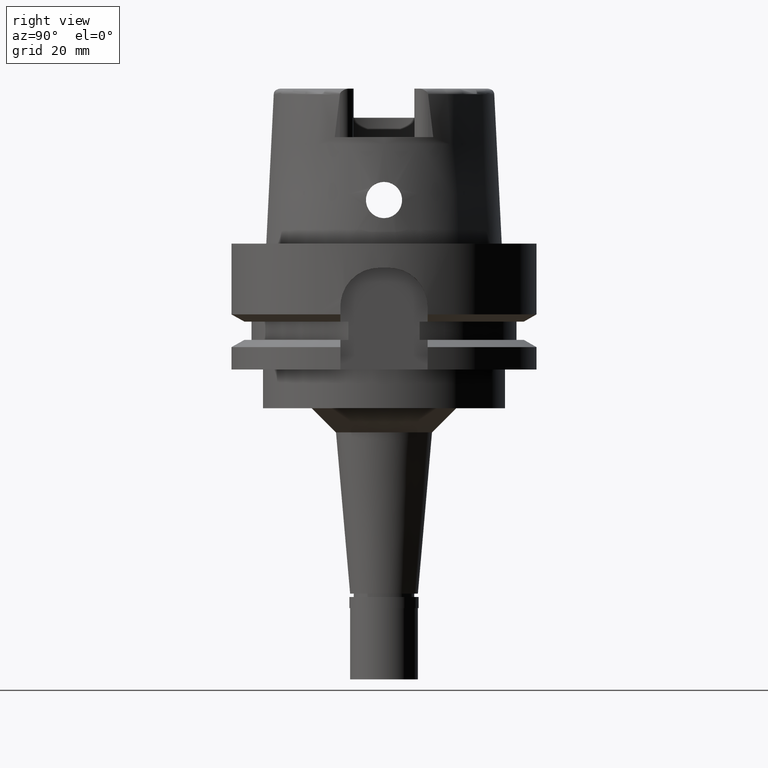
[diagram: clean part render]
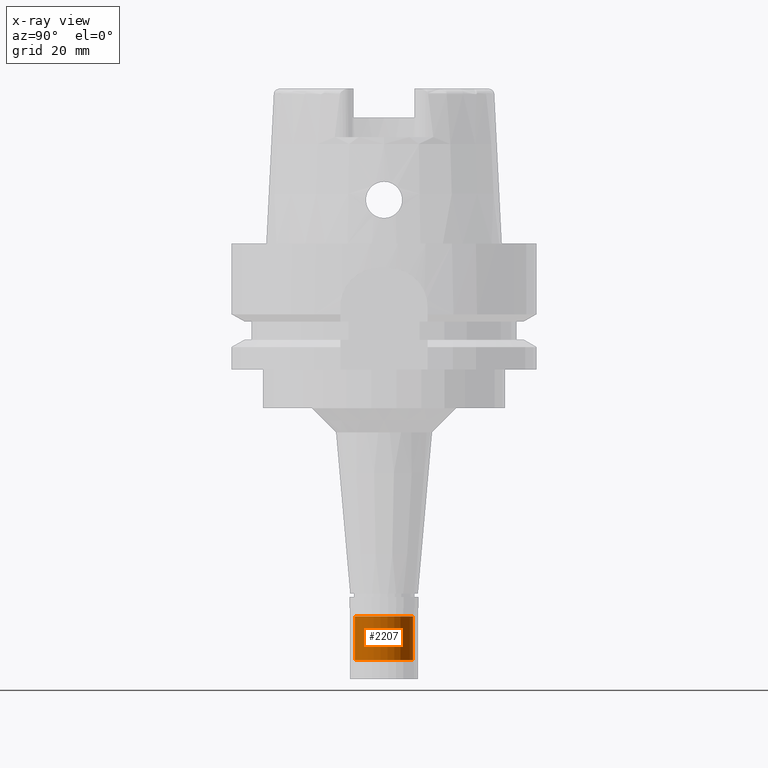
[diagram: x-ray — body ghosted, one internal face saturated and labeled with its STEP entity id]
A machine part, right view, then the same camera in x-ray: the body is ghosted and one INTERNAL B-rep face — a face not visible from any outside direction — is saturated and labeled: STEP entity #2207.
In plain terms, the highlighted cylindrical surface (edge-blend (fillet) strip) has radius 6 mm, axis along (0, 0, -1).
Its self-contained STEP definition (entity closure, byte-faithful):
#30 = CIRCLE ( 'NONE', #4251, 6.000000000000000000 ) ;
#124 = VECTOR ( 'NONE', #3413, 1000.000000000000000 ) ;
#281 = EDGE_CURVE ( 'NONE', #3581, #2996, #5566, .T. ) ;
#286 = CARTESIAN_POINT ( 'NONE',  ( 0.0000000000000000000, 0.0000000000000000000, 37.90000000000000568 ) ) ;
#612 = ORIENTED_EDGE ( 'NONE', *, *, #685, .T. ) ;
#685 = EDGE_CURVE ( 'NONE', #2996, #1174, #30, .T. ) ;
#766 = CYLINDRICAL_SURFACE ( 'NONE', #820, 6.000000000000000000 ) ;
#820 = AXIS2_PLACEMENT_3D ( 'NONE', #286, #3768, #1150 ) ;
#904 = CIRCLE ( 'NONE', #4775, 6.000000000000000000 ) ;
#1017 = CARTESIAN_POINT ( 'NONE',  ( 0.0000000000000000000, 6.000000000000000000, -86.00000000000000000 ) ) ;
#1021 = CARTESIAN_POINT ( 'NONE',  ( 0.0000000000000000000, -6.000000000000000000, -77.00000000000000000 ) ) ;
#1150 = DIRECTION ( 'NONE',  ( 0.0000000000000000000, -1.000000000000000000, 0.0000000000000000000 ) ) ;
#1174 = VERTEX_POINT ( 'NONE', #1017 ) ;
#1211 = VECTOR ( 'NONE', #1544, 1000.000000000000000 ) ;
#1475 = VERTEX_POINT ( 'NONE', #1759 ) ;
#1533 = CARTESIAN_POINT ( 'NONE',  ( 0.0000000000000000000, 0.0000000000000000000, -86.00000000000000000 ) ) ;
#1544 = DIRECTION ( 'NONE',  ( 0.0000000000000000000, 0.0000000000000000000, -1.000000000000000000 ) ) ;
#1759 = CARTESIAN_POINT ( 'NONE',  ( 0.0000000000000000000, 6.000000000000000000, -77.00000000000000000 ) ) ;
#1943 = CARTESIAN_POINT ( 'NONE',  ( 0.0000000000000000000, 6.000000000000000000, -77.00000000000000000 ) ) ;
#1987 = DIRECTION ( 'NONE',  ( 0.0000000000000000000, -1.000000000000000000, 0.0000000000000000000 ) ) ;
#2098 = EDGE_CURVE ( 'NONE', #1475, #1174, #3604, .T. ) ;
#2136 = CARTESIAN_POINT ( 'NONE',  ( 0.0000000000000000000, -6.000000000000000000, -86.00000000000000000 ) ) ;
#2207 = ADVANCED_FACE ( 'NONE', ( #3380 ), #766, .T. ) ;
#2375 = EDGE_LOOP ( 'NONE', ( #3978, #4678, #612, #3368 ) ) ;
#2423 = DIRECTION ( 'NONE',  ( 0.0000000000000000000, 1.000000000000000000, 0.0000000000000000000 ) ) ;
#2675 = CARTESIAN_POINT ( 'NONE',  ( 0.0000000000000000000, -6.000000000000000000, -77.00000000000000000 ) ) ;
#2996 = VERTEX_POINT ( 'NONE', #2136 ) ;
#3177 = EDGE_CURVE ( 'NONE', #1475, #3581, #904, .T. ) ;
#3253 = DIRECTION ( 'NONE',  ( 0.0000000000000000000, 0.0000000000000000000, 1.000000000000000000 ) ) ;
#3368 = ORIENTED_EDGE ( 'NONE', *, *, #2098, .F. ) ;
#3380 = FACE_OUTER_BOUND ( 'NONE', #2375, .T. ) ;
#3413 = DIRECTION ( 'NONE',  ( 0.0000000000000000000, 0.0000000000000000000, -1.000000000000000000 ) ) ;
#3581 = VERTEX_POINT ( 'NONE', #1021 ) ;
#3604 = LINE ( 'NONE', #1943, #1211 ) ;
#3637 = DIRECTION ( 'NONE',  ( 0.0000000000000000000, 0.0000000000000000000, -1.000000000000000000 ) ) ;
#3768 = DIRECTION ( 'NONE',  ( 0.0000000000000000000, 0.0000000000000000000, -1.000000000000000000 ) ) ;
#3978 = ORIENTED_EDGE ( 'NONE', *, *, #3177, .T. ) ;
#4087 = CARTESIAN_POINT ( 'NONE',  ( 0.0000000000000000000, 0.0000000000000000000, -77.00000000000000000 ) ) ;
#4251 = AXIS2_PLACEMENT_3D ( 'NONE', #1533, #3253, #1987 ) ;
#4678 = ORIENTED_EDGE ( 'NONE', *, *, #281, .T. ) ;
#4775 = AXIS2_PLACEMENT_3D ( 'NONE', #4087, #3637, #2423 ) ;
#5566 = LINE ( 'NONE', #2675, #124 ) ;